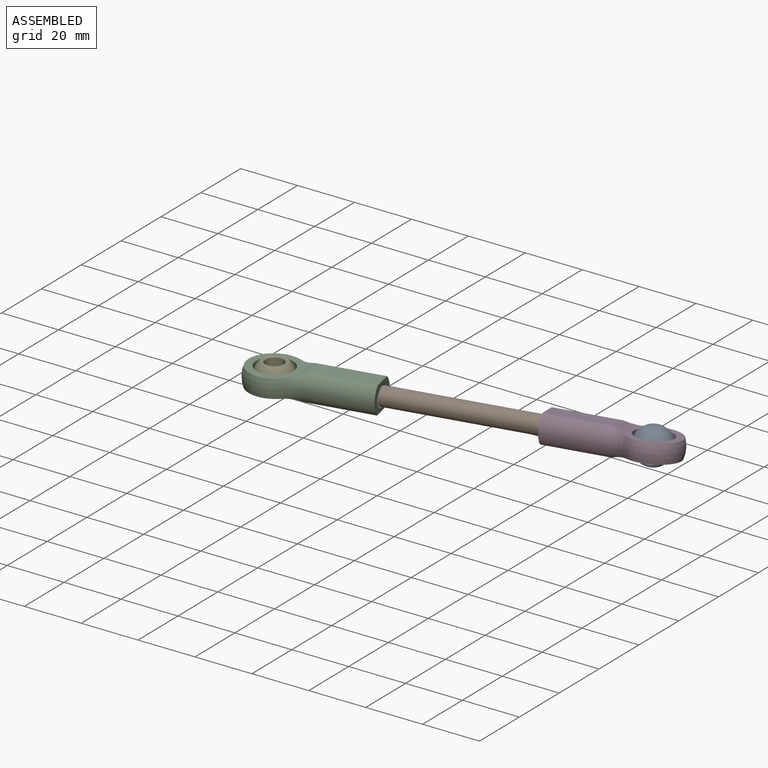
[diagram: assembled view]
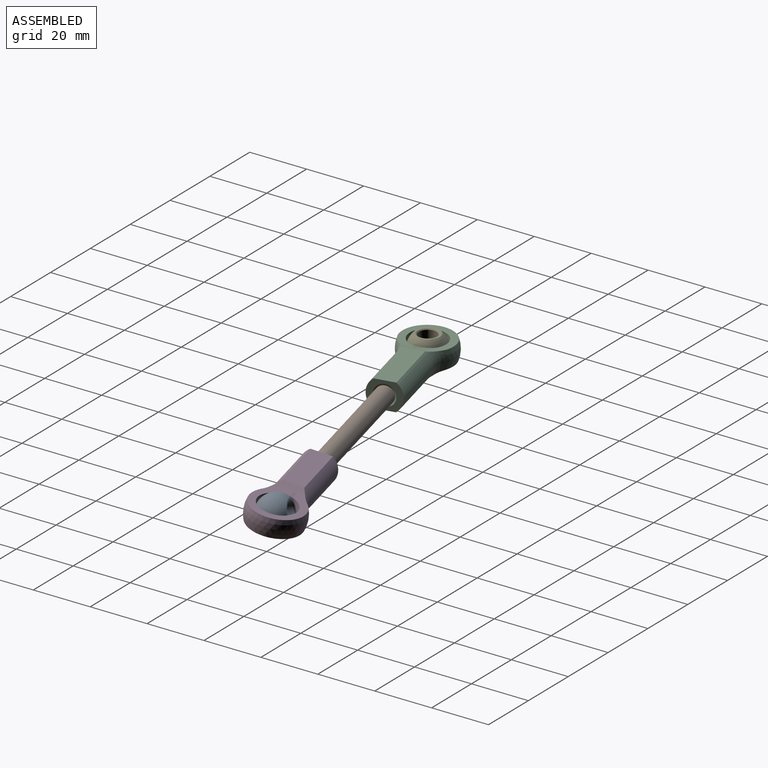
[diagram: assembled view, second angle]
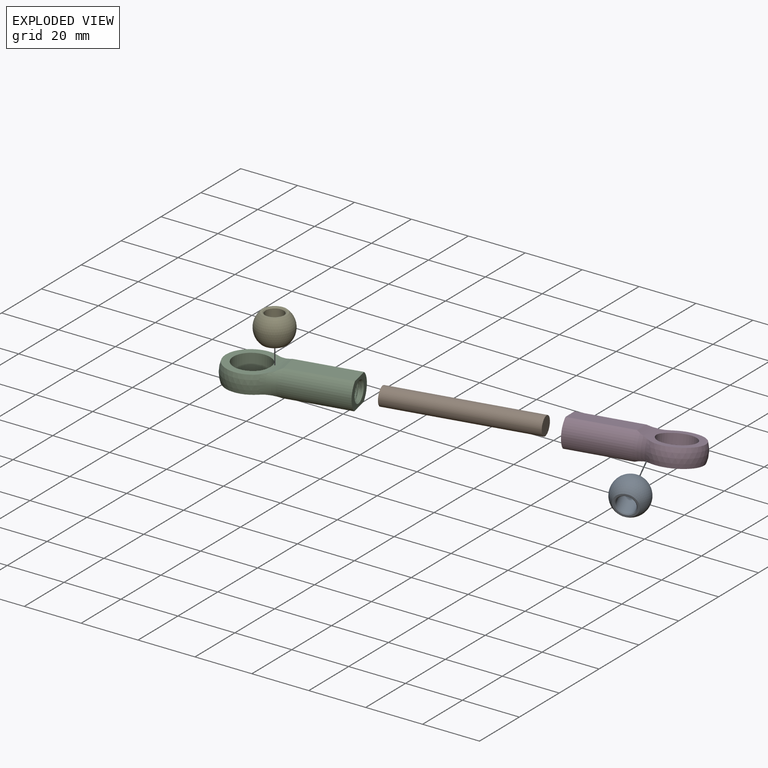
[diagram: exploded view]
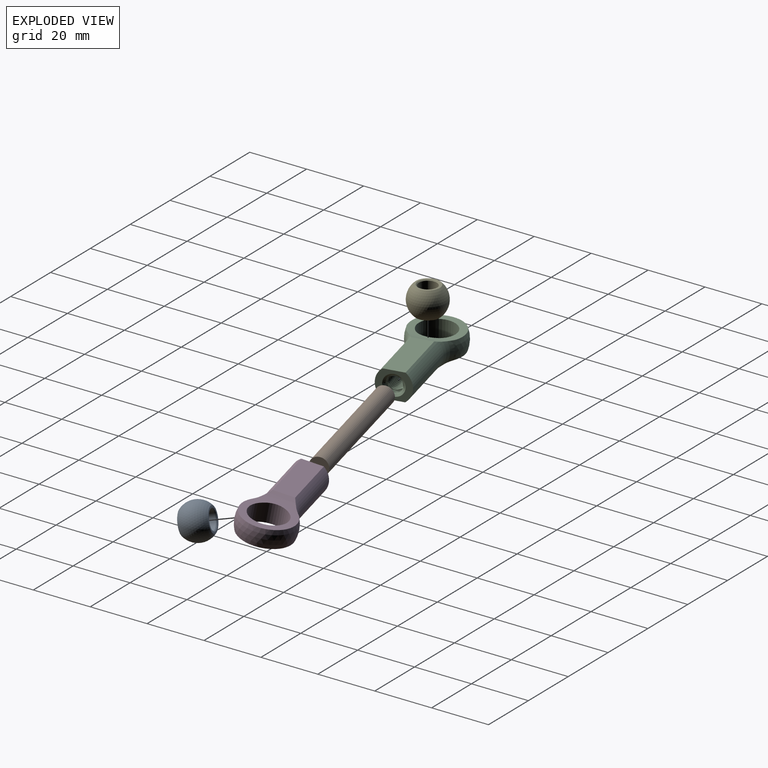
[diagram: exploded view, second angle]
ASSEMBLY  parts=5 mates=6
PART A: 6 faces, bbox 12.7x12.7x9.5 mm
  f0: cone r=3.49mm half-angle=45deg, axis (0,0,1), area 9.4mm2, adj f2,f4
  f1: cone r=3.49mm half-angle=45deg, axis (0,0,-1), area 9.4mm2, adj f2,f5
  f2: cylinder r=3.17mm len=8.89mm, axis (0,0,1), area 177.3mm2, adj f0,f1
  f3: sphere r=6.35mm, area 380mm2, adj f4,f5
  f4: plane 8.4x8.4mm, normal (0,0,1), area 17.1mm2, adj f0,f3
  f5: plane 8.4x8.4mm, normal (0,0,-1), area 17.1mm2, adj f1,f3
PART B: 3 faces, bbox 6.4x50.8x6.4 mm
  f0: cylinder r=3.17mm len=50.8mm, axis (0,1,0), area 1013.4mm2, adj f1,f2
  f1: plane 6.35x6.35mm, normal (0,-1,0), area 31.7mm2, adj f0
  f2: plane 6.35x6.35mm, normal (0,1,0), area 31.7mm2, adj f0
PART C: 19 faces, bbox 19.4x43.2x15.5 mm
  f0: cylinder r=6.41mm len=12.83mm, axis (0,0,1), area 255.9mm2, adj f15,f16,f17,f18
  f1: sphere r=9.53mm, area 271.3mm2, adj f2,f6,f15,f16,f17,f18
  f2: torus R=15.47mm, axis (0,-1,0), area 52.1mm2, adj f1,f8,f17,f18
  f3: cylinder r=3.17mm len=17.01mm, axis (0,-1,0), area 42.4mm2, adj f4,f9,f10,f12
  f4: cone r=3.63mm half-angle=45deg, axis (0,-1,0), area 21.4mm2, adj f3,f7,f10,f11,f12
  f5: cylinder r=5.94mm len=22.22mm, axis (0,1,0), area 245.5mm2, adj f6,f7,f13,f14
  f6: torus R=15.47mm, axis (0,-1,0), area 52.1mm2, adj f1,f5,f17,f18
  f7: plane 11.89x9.53mm, normal (0,-1,0), area 58.2mm2, adj f4,f5,f8,f13,f14
  f8: cylinder r=5.94mm len=22.22mm, axis (0,1,0), area 245.5mm2, adj f2,f7,f13,f14
  f9: plane 6.16x6.13mm, normal (0,-1,0), area 26.2mm2, adj f3,f10,f11,f12
  f10: bspline ~17.35x6.35mm, area 227.2mm2, adj f3,f4,f9,f11
  f11: cylinder r=2.59mm len=16.42mm, axis (0,1,0), area 33.2mm2, adj f4,f9,f10,f12
  f12: bspline ~17.91x6.35mm, area 226.8mm2, adj f3,f4,f9,f11
  f13: plane 22.22x7.11mm, normal (0,0,1), area 158mm2, adj f5,f7,f8,f17
  f14: plane 22.22x7.11mm, normal (0,0,-1), area 158mm2, adj f5,f7,f8,f18
  f15: plane 17.96x13mm, normal (0,0,1), area 83.8mm2, adj f0,f1,f17
  f16: plane 17.96x13mm, normal (0,0,-1), area 83.8mm2, adj f0,f1,f18
  f17: cylinder r=16.67mm len=16.06mm, axis (-1,0,0), area 67.8mm2, adj f0,f1,f2,f6,f13,f15
  f18: cylinder r=16.67mm len=16.06mm, axis (1,0,0), area 67.8mm2, adj f0,f1,f2,f6,f14,f16
PART D: same geometry as C
PART E: same geometry as A
PLACE A rot(axis=(-0.71,-0.58,-0.4),85.7deg) t=(92.14,60.36,-11.08)mm
PLACE B rot(axis=(-0.55,0.45,0.7),122.3deg) t=(22.3,48.64,-17.42)mm
PLACE C rot(axis=(0.78,-0.62,0),178.7deg) t=(5.6,43.34,-17.49)mm
PLACE D rot(axis=(0.62,0.78,-0.06),172.4deg) t=(89.07,62.85,-18.69)mm
PLACE E t=(-9.85,23.86,-17.26)mm
MATE ball E.f0 <-> C.f0  axis (0,0,1) through (-9.85,39.73,-17.26)mm
MATE planar B.f0 <-> D.f2  axis (0.97,0.23,-0.01) through (72.07,58.88,-18.44)mm
MATE planar B.f0 <-> C.f2  axis (-0.97,-0.23,0.01) through (22.61,47.32,-17.73)mm
MATE ball A.f0 <-> D.f0  axis (-0.31,0.92,0.22) through (104.53,66.46,-18.91)mm
MATE cylindrical C.f5 <-> B.f0  axis (-0.97,-0.23,0.01) through (11.79,44.79,-17.58)mm
MATE cylindrical D.f5 <-> B.f0  axis (0.97,0.23,-0.01) through (72.07,58.88,-18.44)mm
